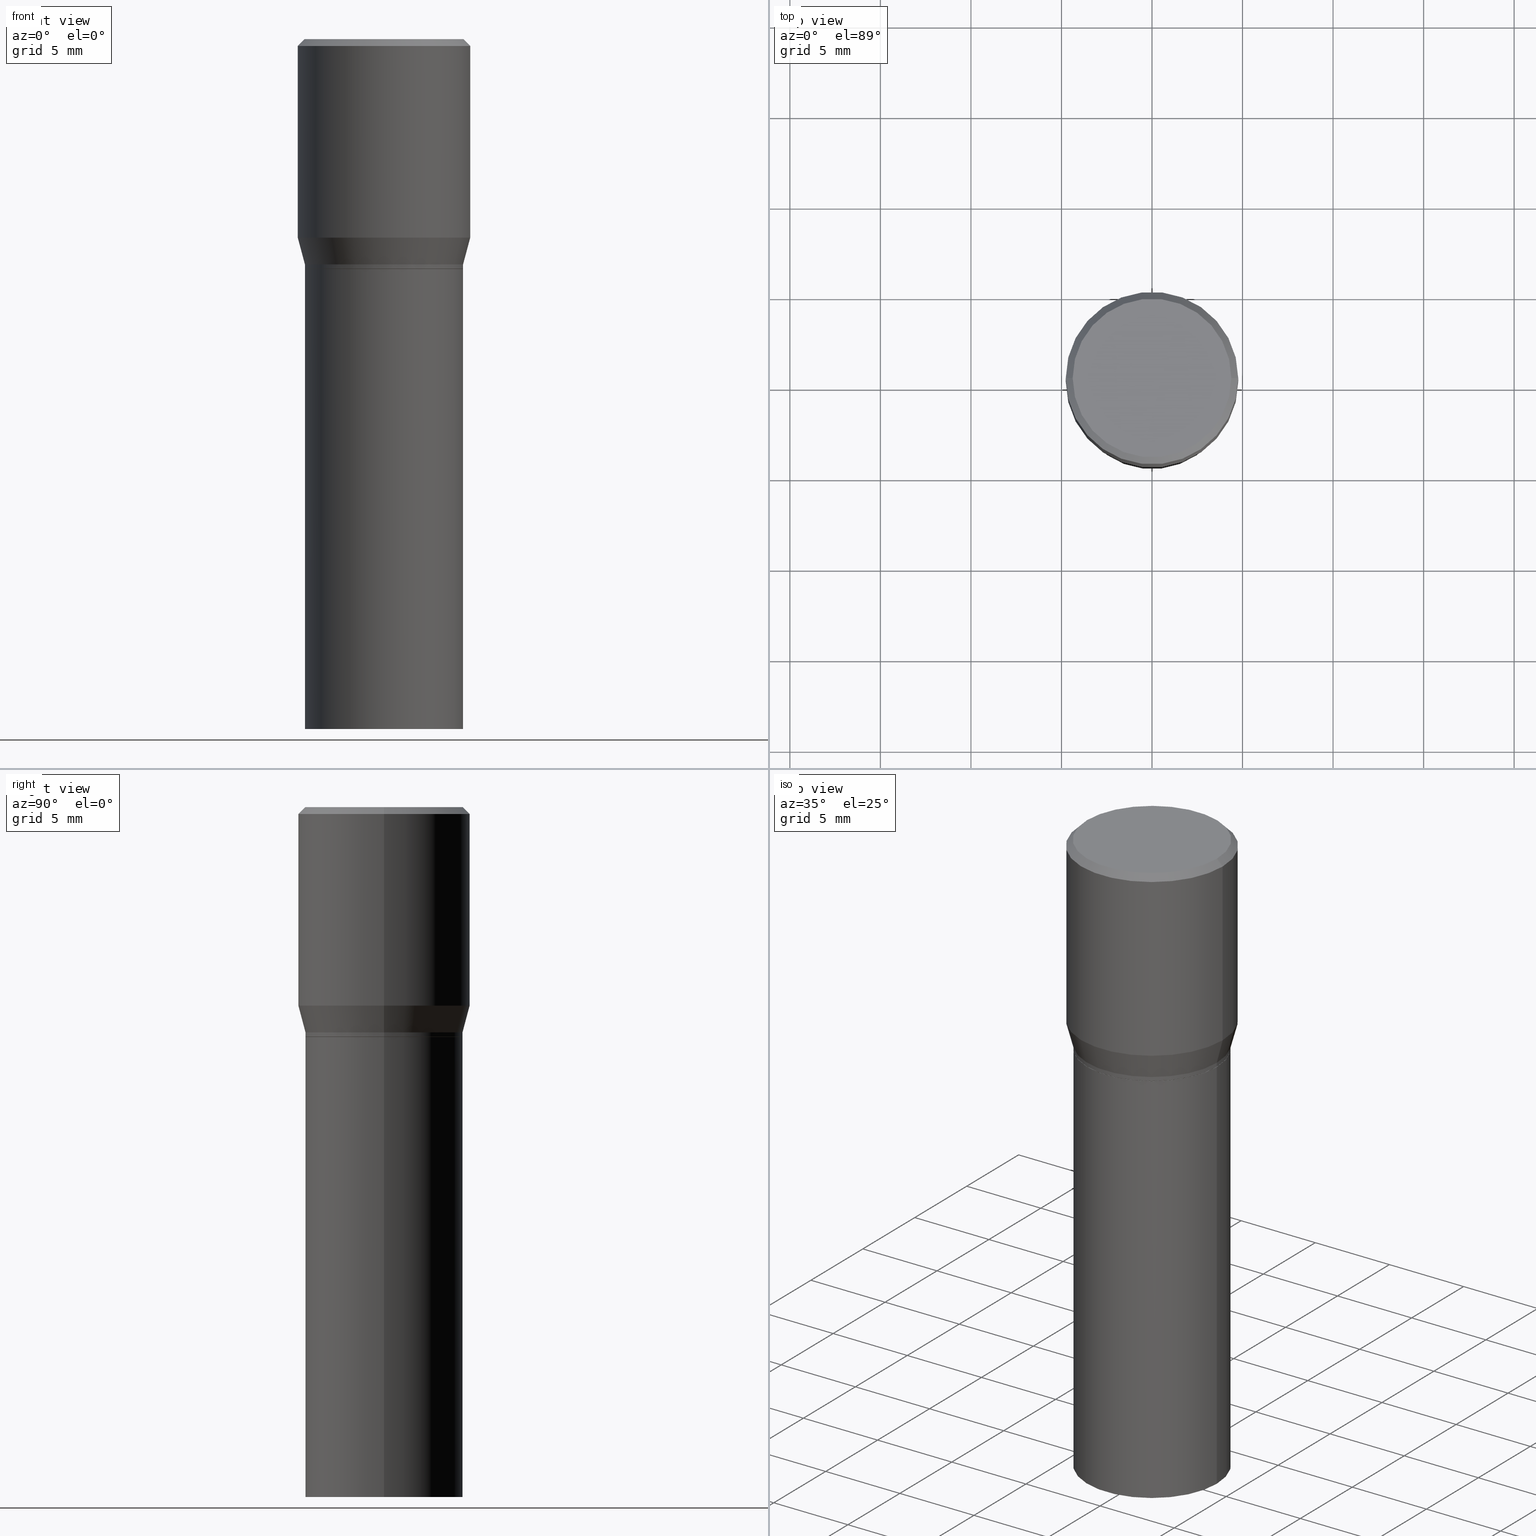
[diagram: canonical four-view strip — front | top / right | iso, engineering-drawing reading convention]
A machine part, canonical four-view strip (front | top / right | iso — engineering-drawing reading convention). The complete STEP part file that produces these views, byte-faithful:
ISO-10303-21;
HEADER;
FILE_DESCRIPTION (( 'STEP AP203' ),
    '1' );
FILE_NAME ('30832.STEP',
    '2024-03-13T16:25:50',
    ( '' ),
    ( '' ),
    'SwSTEP 2.0',
    'SolidWorks 2023',
    '' );
FILE_SCHEMA (( 'CONFIG_CONTROL_DESIGN' ));
ENDSEC;

DATA;
#1 = EDGE_CURVE ( 'NONE', #446, #304, #262, .T. ) ;
#2 = EDGE_LOOP ( 'NONE', ( #32, #310 ) ) ;
#3 = CALENDAR_DATE ( 2024, 13, 3 ) ;
#4 = ORIENTED_EDGE ( 'NONE', *, *, #306, .T. ) ;
#5 = CIRCLE ( 'NONE', #66, 0.1718999999999999695 ) ;
#6 = CALENDAR_DATE ( 2024, 13, 3 ) ;
#7 = CARTESIAN_POINT ( 'NONE',  ( 1.222734403092568719E-29, -1.745740669421573186E-15, -0.5000000000000001110 ) ) ;
#8 = DESIGN_CONTEXT ( 'detailed design', #295, 'design' ) ;
#9 = CARTESIAN_POINT ( 'NONE',  ( 0.1875000000000000278, -1.338715594664809642E-15, -0.01499999999999999944 ) ) ;
#10 = APPROVAL_ROLE ( '' ) ;
#11 = DIRECTION ( 'NONE',  ( -0.7071067811865483499, 2.468850131082265738E-15, -0.7071067811865466846 ) ) ;
#12 = AXIS2_PLACEMENT_3D ( 'NONE', #449, #237, #167 ) ;
#13 = ORIENTED_EDGE ( 'NONE', *, *, #373, .F. ) ;
#14 = DIRECTION ( 'NONE',  ( -2.445468806185136597E-29, 3.491481338843145583E-15, 1.000000000000000000 ) ) ;
#15 = ADVANCED_FACE ( 'NONE', ( #415 ), #236, .T. ) ;
#16 = CC_DESIGN_PERSON_AND_ORGANIZATION_ASSIGNMENT ( #287, #85, ( #274 ) ) ;
#17 = DIRECTION ( 'NONE',  ( 1.000000000000000000, -6.982962677686266711E-15, 0.000000000000000000 ) ) ;
#18 = LINE ( 'NONE', #172, #40 ) ;
#19 = AXIS2_PLACEMENT_3D ( 'NONE', #76, #78, #320 ) ;
#20 = ORIENTED_EDGE ( 'NONE', *, *, #1, .T. ) ;
#21 = CARTESIAN_POINT ( 'NONE',  ( 3.668203209277704895E-29, -5.237222008264718177E-15, -1.500000000000000222 ) ) ;
#22 = DIRECTION ( 'NONE',  ( 1.000000000000000000, -6.982962677686265922E-15, 0.000000000000000000 ) ) ;
#23 = FACE_OUTER_BOUND ( 'NONE', #79, .T. ) ;
#24 = FACE_OUTER_BOUND ( 'NONE', #347, .T. ) ;
#25 = ADVANCED_FACE ( 'NONE', ( #178 ), #455, .F. ) ;
#26 = ADVANCED_FACE ( 'NONE', ( #457 ), #294, .T. ) ;
#27 = CARTESIAN_POINT ( 'NONE',  ( -0.1718999999999999695, -3.323435510203601689E-16, -0.4900000000000001021 ) ) ;
#28 = CARTESIAN_POINT ( 'NONE',  ( 1.055904539235796751E-29, -1.507551838329378850E-15, -0.4317800074019257361 ) ) ;
#29 = COORDINATED_UNIVERSAL_TIME_OFFSET ( 5, 0, .BEHIND. ) ;
#30 = CLOSED_SHELL ( 'NONE', ( #286, #256, #15, #48 ) ) ;
#31 = APPLICATION_PROTOCOL_DEFINITION ( 'international standard', 'config_control_design', 1994, #325 ) ;
#32 = ORIENTED_EDGE ( 'NONE', *, *, #164, .F. ) ;
#33 = PERSON_AND_ORGANIZATION_ROLE ( 'creator' ) ;
#34 = ORIENTED_EDGE ( 'NONE', *, *, #153, .F. ) ;
#35 = VERTEX_POINT ( 'NONE', #68 ) ;
#36 = APPROVAL_STATUS ( 'not_yet_approved' ) ;
#37 = ORIENTED_EDGE ( 'NONE', *, *, #170, .T. ) ;
#38 = ORIENTED_EDGE ( 'NONE', *, *, #60, .T. ) ;
#39 = AXIS2_PLACEMENT_3D ( 'NONE', #139, #382, #207 ) ;
#40 = VECTOR ( 'NONE', #374, 39.37007874015748854 ) ;
#41 = UNCERTAINTY_MEASURE_WITH_UNIT (LENGTH_MEASURE( 1.000000000000000082E-05 ), #183, 'distance_accuracy_value', 'NONE');
#42 = LINE ( 'NONE', #333, #273 ) ;
#43 = ORIENTED_EDGE ( 'NONE', *, *, #131, .T. ) ;
#44 = DATE_AND_TIME ( #187, #390 ) ;
#45 = LINE ( 'NONE', #191, #336 ) ;
#46 = PERSON_AND_ORGANIZATION_ROLE ( 'design_supplier' ) ;
#47 = FACE_OUTER_BOUND ( 'NONE', #352, .T. ) ;
#48 = ADVANCED_FACE ( 'NONE', ( #422 ), #107, .F. ) ;
#49 = CYLINDRICAL_SURFACE ( 'NONE', #418, 0.1718999999999999695 ) ;
#50 = CONICAL_SURFACE ( 'NONE', #363, 0.1718999999999999695, 0.2617993877991502960 ) ;
#51 = APPROVAL_PERSON_ORGANIZATION ( #389, #241, #385 ) ;
#52 = ORIENTED_EDGE ( 'NONE', *, *, #154, .F. ) ;
#53 = ORIENTED_EDGE ( 'NONE', *, *, #1, .F. ) ;
#54 = FACE_OUTER_BOUND ( 'NONE', #254, .T. ) ;
#55 = CARTESIAN_POINT ( 'NONE',  ( 0.1718999999999999695, -1.200371284294269044E-15, 8.382147877593213079E-30 ) ) ;
#56 = CARTESIAN_POINT ( 'NONE',  ( 0.1713999999999999690, -2.942620472376999223E-15, -0.5000000000000001110 ) ) ;
#57 = PRODUCT ( '30832', '30832', '', ( #216 ) ) ;
#58 = CIRCLE ( 'NONE', #311, 0.1725000000000000144 ) ;
#59 = AXIS2_PLACEMENT_3D ( 'NONE', #176, #303, #454 ) ;
#60 = EDGE_CURVE ( 'NONE', #181, #317, #436, .T. ) ;
#61 = DIRECTION ( 'NONE',  ( 1.000000000000000000, -6.982962677686265922E-15, 0.000000000000000000 ) ) ;
#62 = EDGE_LOOP ( 'NONE', ( #308, #4, #326, #148 ) ) ;
#63 = DIRECTION ( 'NONE',  ( -2.445468806185136877E-29, 3.491481338843145188E-15, 1.000000000000000000 ) ) ;
#64 = DIRECTION ( 'NONE',  ( -2.445468806185136597E-29, 3.491481338843145583E-15, 1.000000000000000000 ) ) ;
#65 = APPROVAL ( #391, 'UNSPECIFIED' ) ;
#66 = AXIS2_PLACEMENT_3D ( 'NONE', #7, #362, #17 ) ;
#67 = PERSON_AND_ORGANIZATION_ROLE ( 'design_owner' ) ;
#68 = CARTESIAN_POINT ( 'NONE',  ( 0.1718999999999999695, -6.437593292558987418E-15, -1.500000000000000222 ) ) ;
#69 = CALENDAR_DATE ( 2024, 13, 3 ) ;
#70 = CARTESIAN_POINT ( 'NONE',  ( 0.000000000000000000, 0.000000000000000000, 0.000000000000000000 ) ) ;
#71 = AXIS2_PLACEMENT_3D ( 'NONE', #209, #238, #179 ) ;
#72 = ORIENTED_EDGE ( 'NONE', *, *, #373, .T. ) ;
#73 = COORDINATED_UNIVERSAL_TIME_OFFSET ( 5, 0, .BEHIND. ) ;
#74 = EDGE_CURVE ( 'NONE', #464, #316, #240, .T. ) ;
#75 = DIRECTION ( 'NONE',  ( -1.000000000000000000, 6.982962677686265922E-15, -4.876176775795935793E-29 ) ) ;
#76 = CARTESIAN_POINT ( 'NONE',  ( 1.198279715030717173E-29, -1.710825856033141537E-15, -0.4900000000000001021 ) ) ;
#77 = EDGE_CURVE ( 'NONE', #35, #424, #383, .T. ) ;
#78 = DIRECTION ( 'NONE',  ( -2.445468806185136597E-29, 3.491481338843145583E-15, 1.000000000000000000 ) ) ;
#79 = EDGE_LOOP ( 'NONE', ( #427, #117, #188, #38 ) ) ;
#80 = PERSON_AND_ORGANIZATION ( #151, #452 ) ;
#81 = ORIENTED_EDGE ( 'NONE', *, *, #170, .F. ) ;
#82 = DIRECTION ( 'NONE',  ( -2.445468806185136597E-29, 3.491481338843145583E-15, 1.000000000000000000 ) ) ;
#83 = EDGE_CURVE ( 'NONE', #147, #181, #197, .T. ) ;
#84 = ORIENTED_EDGE ( 'NONE', *, *, #305, .F. ) ;
#85 = PERSON_AND_ORGANIZATION_ROLE ( 'creator' ) ;
#86 = AXIS2_PLACEMENT_3D ( 'NONE', #284, #258, #118 ) ;
#87 = AXIS2_PLACEMENT_3D ( 'NONE', #444, #128, #61 ) ;
#88 = FACE_OUTER_BOUND ( 'NONE', #327, .T. ) ;
#89 = CARTESIAN_POINT ( 'NONE',  ( 3.576687321579069994E-29, -5.368277968210015545E-15, -1.500000000000000222 ) ) ;
#90 = CARTESIAN_POINT ( 'NONE',  ( 1.222734403092568719E-29, -1.745740669421573186E-15, -0.5000000000000001110 ) ) ;
#91 = MANIFOLD_SOLID_BREP ( 'Body-Move/Copy2[2]', #266 ) ;
#92 = DATE_AND_TIME ( #291, #463 ) ;
#93 = CARTESIAN_POINT ( 'NONE',  ( -0.1725000000000000144, 1.230747171942204192E-15, -2.636744989016075847E-17 ) ) ;
#94 = VERTEX_POINT ( 'NONE', #251 ) ;
#95 = AXIS2_PLACEMENT_3D ( 'NONE', #231, #269, #22 ) ;
#96 = CONICAL_SURFACE ( 'NONE', #71, 0.1875000000000000278, 0.7853981633974495002 ) ;
#97 = CARTESIAN_POINT ( 'NONE',  ( 0.000000000000000000, 0.000000000000000000, 0.000000000000000000 ) ) ;
#98 = DIRECTION ( 'NONE',  ( 1.000000000000000000, -6.982962677686265922E-15, 4.876176775795935793E-29 ) ) ;
#99 = DIRECTION ( 'NONE',  ( -2.445468806185136597E-29, 3.491481338843145583E-15, 1.000000000000000000 ) ) ;
#100 = CIRCLE ( 'NONE', #135, 0.1718999999999999695 ) ;
#101 = CIRCLE ( 'NONE', #129, 0.1725000000000000144 ) ;
#102 = ORIENTED_EDGE ( 'NONE', *, *, #305, .T. ) ;
#103 = CARTESIAN_POINT ( 'NONE',  ( 0.1875000000000000278, -1.309305502066175008E-15, 9.142831454617381013E-30 ) ) ;
#104 = EDGE_CURVE ( 'NONE', #378, #249, #5, .T. ) ;
#105 = DIRECTION ( 'NONE',  ( -0.2588190451025216277, 5.211531920934551831E-15, 0.9659258262890679791 ) ) ;
#106 = AXIS2_PLACEMENT_3D ( 'NONE', #324, #165, #368 ) ;
#107 = PLANE ( 'NONE',  #318 ) ;
#108 = ORIENTED_EDGE ( 'NONE', *, *, #300, .T. ) ;
#109 = ORIENTED_EDGE ( 'NONE', *, *, #83, .F. ) ;
#110 = ORIENTED_EDGE ( 'NONE', *, *, #451, .T. ) ;
#111 = APPROVAL_ROLE ( '' ) ;
#112 = ORIENTED_EDGE ( 'NONE', *, *, #459, .T. ) ;
#113 = EDGE_CURVE ( 'NONE', #453, #317, #370, .T. ) ;
#114 = CARTESIAN_POINT ( 'NONE',  ( 1.198279715030717173E-29, -1.710825856033141537E-15, -0.4900000000000001021 ) ) ;
#115 = EDGE_CURVE ( 'NONE', #316, #304, #222, .T. ) ;
#116 = CARTESIAN_POINT ( 'NONE',  ( 3.668203209277705088E-31, -5.237222008264718399E-17, -0.01499999999999999944 ) ) ;
#117 = ORIENTED_EDGE ( 'NONE', *, *, #434, .F. ) ;
#118 = DIRECTION ( 'NONE',  ( 1.000000000000000000, -6.982962677686268288E-15, 0.000000000000000000 ) ) ;
#119 = ORIENTED_EDGE ( 'NONE', *, *, #77, .F. ) ;
#120 = DIRECTION ( 'NONE',  ( -2.445468806185136597E-29, 3.491481338843145583E-15, 1.000000000000000000 ) ) ;
#121 = CIRCLE ( 'NONE', #247, 0.1718999999999999695 ) ;
#122 = APPROVAL_PERSON_ORGANIZATION ( #250, #322, #10 ) ;
#123 = DIRECTION ( 'NONE',  ( 1.000000000000000000, -6.982962677686266711E-15, 4.876176775795936353E-29 ) ) ;
#124 = APPROVAL_DATE_TIME ( #92, #322 ) ;
#125 = DIRECTION ( 'NONE',  ( -2.445468806185136597E-29, 3.491481338843145583E-15, 1.000000000000000000 ) ) ;
#126 = FACE_OUTER_BOUND ( 'NONE', #349, .T. ) ;
#127 = ORIENTED_EDGE ( 'NONE', *, *, #459, .F. ) ;
#128 = DIRECTION ( 'NONE',  ( -2.445468806185136597E-29, 3.491481338843145583E-15, 1.000000000000000000 ) ) ;
#129 = AXIS2_PLACEMENT_3D ( 'NONE', #412, #64, #202 ) ;
#130 = CARTESIAN_POINT ( 'NONE',  ( -0.1718999999999999695, -4.894028932615295339E-16, -0.4900000000000001021 ) ) ;
#131 = EDGE_CURVE ( 'NONE', #424, #249, #42, .T. ) ;
#132 = ORIENTED_EDGE ( 'NONE', *, *, #233, .T. ) ;
#133 = DIRECTION ( 'NONE',  ( 1.000000000000000000, -6.982962677686265922E-15, 4.876176775795935793E-29 ) ) ;
#134 = CARTESIAN_POINT ( 'NONE',  ( 0.000000000000000000, 0.000000000000000000, 0.000000000000000000 ) ) ;
#135 = AXIS2_PLACEMENT_3D ( 'NONE', #403, #440, #190 ) ;
#136 =( GEOMETRIC_REPRESENTATION_CONTEXT ( 3 ) GLOBAL_UNCERTAINTY_ASSIGNED_CONTEXT ( ( #41 ) ) GLOBAL_UNIT_ASSIGNED_CONTEXT ( ( #183, #140, #465 ) ) REPRESENTATION_CONTEXT ( 'NONE', 'WORKASPACE' ) );
#137 = DIRECTION ( 'NONE',  ( -2.445468806185136597E-29, 3.491481338843145583E-15, 1.000000000000000000 ) ) ;
#138 = CARTESIAN_POINT ( 'NONE',  ( -0.1875000000000000278, -1.752842087791908777E-16, -0.4317800074019257361 ) ) ;
#139 = CARTESIAN_POINT ( 'NONE',  ( 1.204561061900881047E-15, 0.1725000000000000144, -6.154642558955188135E-16 ) ) ;
#140 =( NAMED_UNIT ( * ) PLANE_ANGLE_UNIT ( ) SI_UNIT ( $, .RADIAN. ) );
#141 = VECTOR ( 'NONE', #105, 39.37007874015748143 ) ;
#142 = AXIS2_PLACEMENT_3D ( 'NONE', #384, #243, #180 ) ;
#143 = CARTESIAN_POINT ( 'NONE',  ( 1.222734403092568719E-29, -1.745740669421573186E-15, -0.5000000000000001110 ) ) ;
#144 = ORIENTED_EDGE ( 'NONE', *, *, #359, .T. ) ;
#145 = DIRECTION ( 'NONE',  ( -2.445468806185136597E-29, 3.491481338843145583E-15, 1.000000000000000000 ) ) ;
#146 = ORIENTED_EDGE ( 'NONE', *, *, #392, .F. ) ;
#147 = VERTEX_POINT ( 'NONE', #93 ) ;
#148 = ORIENTED_EDGE ( 'NONE', *, *, #74, .F. ) ;
#149 = ORIENTED_EDGE ( 'NONE', *, *, #359, .F. ) ;
#150 = DATE_AND_TIME ( #3, #296 ) ;
#151 = PERSON ( 'UNSPECIFIED', 'UNSPECIFIED', 'UNSPECIFIED', ('UNSPECIFIED'), ('UNSPECIFIED'), ('UNSPECIFIED') ) ;
#152 = EDGE_LOOP ( 'NONE', ( #313, #395, #276, #53 ) ) ;
#153 = EDGE_CURVE ( 'NONE', #316, #464, #100, .T. ) ;
#154 = EDGE_CURVE ( 'NONE', #94, #275, #396, .T. ) ;
#155 = EDGE_LOOP ( 'NONE', ( #144, #132, #358, #146 ) ) ;
#156 = SHAPE_DEFINITION_REPRESENTATION ( #409, #299 ) ;
#157 = DIRECTION ( 'NONE',  ( 1.000000000000000000, -6.982962677686266711E-15, 0.000000000000000000 ) ) ;
#158 = PERSON_AND_ORGANIZATION ( #151, #452 ) ;
#159 = FACE_OUTER_BOUND ( 'NONE', #62, .T. ) ;
#160 = DATE_AND_TIME ( #6, #346 ) ;
#161 = VECTOR ( 'NONE', #163, 39.37007874015748143 ) ;
#162 = AXIS2_PLACEMENT_3D ( 'NONE', #97, #377, #133 ) ;
#163 = DIRECTION ( 'NONE',  ( 0.2588190451025216277, 1.565188264969619995E-15, 0.9659258262890679791 ) ) ;
#164 = EDGE_CURVE ( 'NONE', #388, #94, #445, .T. ) ;
#165 = DIRECTION ( 'NONE',  ( -2.445468806185136597E-29, 3.491481338843145583E-15, 1.000000000000000000 ) ) ;
#166 = ORIENTED_EDGE ( 'NONE', *, *, #77, .T. ) ;
#167 = DIRECTION ( 'NONE',  ( 1.000000000000000000, -6.982962677686265922E-15, 0.000000000000000000 ) ) ;
#168 = ORIENTED_EDGE ( 'NONE', *, *, #306, .F. ) ;
#169 = EDGE_CURVE ( 'NONE', #249, #378, #224, .T. ) ;
#170 = EDGE_CURVE ( 'NONE', #453, #147, #58, .T. ) ;
#171 = VECTOR ( 'NONE', #267, 39.37007874015748143 ) ;
#172 = CARTESIAN_POINT ( 'NONE',  ( 0.1713999999999999690, -2.942620472376999223E-15, -0.5000000000000001110 ) ) ;
#173 = CONICAL_SURFACE ( 'NONE', #337, 0.1718999999999999695, 0.2617993877991502960 ) ;
#174 = DIRECTION ( 'NONE',  ( -2.445468806185136597E-29, 3.491481338843145583E-15, 1.000000000000000000 ) ) ;
#175 = CARTESIAN_POINT ( 'NONE',  ( -0.1718999999999999695, -5.225719659805397780E-16, -0.4995000000000001661 ) ) ;
#176 = CARTESIAN_POINT ( 'NONE',  ( 3.668203209277705088E-31, -5.237222008264718399E-17, -0.01499999999999999944 ) ) ;
#177 = CONICAL_SURFACE ( 'NONE', #59, 0.1875000000000000278, 0.7853981633974495002 ) ;
#178 = FACE_OUTER_BOUND ( 'NONE', #277, .T. ) ;
#179 = DIRECTION ( 'NONE',  ( -1.000000000000000000, 6.982962677686265922E-15, 0.000000000000000000 ) ) ;
#180 = DIRECTION ( 'NONE',  ( 1.000000000000000000, -6.982962677686265922E-15, 4.876176775795935793E-29 ) ) ;
#181 = VERTEX_POINT ( 'NONE', #439 ) ;
#182 = VECTOR ( 'NONE', #63, 39.37007874015748143 ) ;
#183 =( CONVERSION_BASED_UNIT ( 'INCH', #417 ) LENGTH_UNIT ( ) NAMED_UNIT ( #213 ) );
#184 = ORIENTED_EDGE ( 'NONE', *, *, #113, .T. ) ;
#185 = LINE ( 'NONE', #425, #420 ) ;
#186 = ADVANCED_FACE ( 'NONE', ( #54 ), #50, .T. ) ;
#187 = CALENDAR_DATE ( 2024, 13, 3 ) ;
#188 = ORIENTED_EDGE ( 'NONE', *, *, #83, .T. ) ;
#189 = PERSON_AND_ORGANIZATION_ROLE ( 'classification_officer' ) ;
#190 = DIRECTION ( 'NONE',  ( 1.000000000000000000, -6.982962677686266711E-15, 0.000000000000000000 ) ) ;
#191 = CARTESIAN_POINT ( 'NONE',  ( -0.1875000000000000278, 1.332267629550188046E-15, -9.223003294227947991E-30 ) ) ;
#192 = DIRECTION ( 'NONE',  ( -2.438088387897960049E-29, 3.491481338843145188E-15, 1.000000000000000000 ) ) ;
#193 = AXIS2_PLACEMENT_3D ( 'NONE', #407, #99, #298 ) ;
#194 = CC_DESIGN_SECURITY_CLASSIFICATION ( #212, ( #274 ) ) ;
#195 = CARTESIAN_POINT ( 'NONE',  ( 0.000000000000000000, 0.000000000000000000, 0.000000000000000000 ) ) ;
#196 = EDGE_LOOP ( 'NONE', ( #442, #356 ) ) ;
#197 = LINE ( 'NONE', #334, #230 ) ;
#198 = CC_DESIGN_PERSON_AND_ORGANIZATION_ASSIGNMENT ( #357, #33, ( #386 ) ) ;
#199 = CARTESIAN_POINT ( 'NONE',  ( -0.1718999999999999695, 1.221422962771612003E-15, -8.455649420148183180E-30 ) ) ;
#200 = AXIS2_PLACEMENT_3D ( 'NONE', #143, #271, #419 ) ;
#201 = CARTESIAN_POINT ( 'NONE',  ( -0.1718999999999999695, -2.270058376071533777E-15, -1.500000000000000222 ) ) ;
#202 = DIRECTION ( 'NONE',  ( 1.000000000000000000, -6.982962677686266711E-15, 4.876912640186324808E-29 ) ) ;
#203 = EDGE_LOOP ( 'NONE', ( #166, #43, #214, #127 ) ) ;
#204 = DIRECTION ( 'NONE',  ( 1.000000000000000000, -6.982962677686266711E-15, 0.000000000000000000 ) ) ;
#205 = FACE_OUTER_BOUND ( 'NONE', #203, .T. ) ;
#206 = CC_DESIGN_APPROVAL ( #65, ( #274 ) ) ;
#207 = DIRECTION ( 'NONE',  ( -1.000000000000000000, 6.982962677686265922E-15, -4.876176775795935793E-29 ) ) ;
#208 = ADVANCED_FACE ( 'NONE', ( #47 ), #211, .T. ) ;
#209 = CARTESIAN_POINT ( 'NONE',  ( 3.668203209277705088E-31, -5.237222008264718399E-17, -0.01499999999999999944 ) ) ;
#210 = EDGE_LOOP ( 'NONE', ( #361, #245, #220, #13 ) ) ;
#211 = CONICAL_SURFACE ( 'NONE', #302, 0.1713999999999999690, 0.7853981633974824739 ) ;
#212 = SECURITY_CLASSIFICATION ( '', '', #393 ) ;
#213 = DIMENSIONAL_EXPONENTS ( 1.000000000000000000, 0.000000000000000000, 0.000000000000000000, 0.000000000000000000, 0.000000000000000000, 0.000000000000000000, 0.000000000000000000 ) ;
#214 = ORIENTED_EDGE ( 'NONE', *, *, #104, .F. ) ;
#215 = DATE_AND_TIME ( #69, #319 ) ;
#216 = MECHANICAL_CONTEXT ( 'NONE', #325, 'mechanical' ) ;
#217 = EDGE_LOOP ( 'NONE', ( #281, #20, #365, #401 ) ) ;
#218 = CARTESIAN_POINT ( 'NONE',  ( 6.448077620501702025E-46, -9.206145924434830208E-32, -2.636744989015224123E-17 ) ) ;
#219 = AXIS2_PLACEMENT_3D ( 'NONE', #89, #192, #261 ) ;
#220 = ORIENTED_EDGE ( 'NONE', *, *, #451, .F. ) ;
#221 = CARTESIAN_POINT ( 'NONE',  ( 0.000000000000000000, 0.000000000000000000, 0.000000000000000000 ) ) ;
#222 = LINE ( 'NONE', #253, #161 ) ;
#223 = CARTESIAN_POINT ( 'NONE',  ( 1.222734403092568719E-29, -1.745740669421573186E-15, -0.5000000000000001110 ) ) ;
#224 = CIRCLE ( 'NONE', #461, 0.1718999999999999695 ) ;
#225 = ADVANCED_FACE ( 'NONE', ( #88 ), #433, .T. ) ;
#226 = CARTESIAN_POINT ( 'NONE',  ( -0.1718999999999999695, -2.270058376071533777E-15, -0.5000000000000001110 ) ) ;
#227 = CC_DESIGN_PERSON_AND_ORGANIZATION_ASSIGNMENT ( #432, #46, ( #274 ) ) ;
#228 = CYLINDRICAL_SURFACE ( 'NONE', #193, 0.1718999999999999695 ) ;
#229 = LINE ( 'NONE', #199, #364 ) ;
#230 = VECTOR ( 'NONE', #11, 39.37007874015748143 ) ;
#231 = CARTESIAN_POINT ( 'NONE',  ( 1.221511668689476057E-29, -1.743994928752151682E-15, -0.4995000000000001661 ) ) ;
#232 = ORIENTED_EDGE ( 'NONE', *, *, #371, .T. ) ;
#233 = EDGE_CURVE ( 'NONE', #446, #181, #45, .T. ) ;
#234 = DIRECTION ( 'NONE',  ( -2.445468806185136597E-29, 3.491481338843145583E-15, 1.000000000000000000 ) ) ;
#235 = MANIFOLD_SOLID_BREP ( 'Body-Move/Copy2[1]', #30 ) ;
#236 = CYLINDRICAL_SURFACE ( 'NONE', #397, 0.1718999999999999695 ) ;
#237 = DIRECTION ( 'NONE',  ( -2.445468806185136597E-29, 3.491481338843145583E-15, 1.000000000000000000 ) ) ;
#238 = DIRECTION ( 'NONE',  ( 2.445468806185136597E-29, -3.491481338843145583E-15, -1.000000000000000000 ) ) ;
#239 = AXIS2_PLACEMENT_3D ( 'NONE', #221, #366, #123 ) ;
#240 = CIRCLE ( 'NONE', #19, 0.1718999999999999695 ) ;
#241 = APPROVAL ( #421, 'UNSPECIFIED' ) ;
#242 = DIRECTION ( 'NONE',  ( 1.000000000000000000, -6.982962677686266711E-15, 4.876176775795936353E-29 ) ) ;
#243 = DIRECTION ( 'NONE',  ( -2.438088387897960049E-29, 3.491481338843145188E-15, 1.000000000000000000 ) ) ;
#244 = ORIENTED_EDGE ( 'NONE', *, *, #169, .F. ) ;
#245 = ORIENTED_EDGE ( 'NONE', *, *, #154, .T. ) ;
#246 = APPLICATION_PROTOCOL_DEFINITION ( 'international standard', 'config_control_design', 1994, #295 ) ;
#247 = AXIS2_PLACEMENT_3D ( 'NONE', #21, #174, #416 ) ;
#248 = COORDINATED_UNIVERSAL_TIME_OFFSET ( 5, 0, .BEHIND. ) ;
#249 = VERTEX_POINT ( 'NONE', #226 ) ;
#250 = PERSON_AND_ORGANIZATION ( #151, #452 ) ;
#251 = CARTESIAN_POINT ( 'NONE',  ( -0.1713999999999999690, -5.252211931546505847E-16, -0.5000000000000001110 ) ) ;
#252 = VERTEX_POINT ( 'NONE', #369 ) ;
#253 = CARTESIAN_POINT ( 'NONE',  ( 0.1718999999999999695, -2.911197140327410581E-15, -0.4900000000000001021 ) ) ;
#254 = EDGE_LOOP ( 'NONE', ( #441, #108, #149, #367 ) ) ;
#255 = ADVANCED_FACE ( 'NONE', ( #159 ), #49, .T. ) ;
#256 = ADVANCED_FACE ( 'NONE', ( #126 ), #435, .F. ) ;
#257 = CC_DESIGN_APPROVAL ( #322, ( #212 ) ) ;
#258 = DIRECTION ( 'NONE',  ( -2.445468806185136597E-29, 3.491481338843145583E-15, 1.000000000000000000 ) ) ;
#259 = DIRECTION ( 'NONE',  ( 1.000000000000000000, -6.982962677686266711E-15, 0.000000000000000000 ) ) ;
#260 = EDGE_CURVE ( 'NONE', #252, #316, #379, .T. ) ;
#261 = DIRECTION ( 'NONE',  ( 1.000000000000000000, -6.982962677686265922E-15, 4.876176775795935793E-29 ) ) ;
#262 = CIRCLE ( 'NONE', #429, 0.1875000000000000278 ) ;
#263 = DIRECTION ( 'NONE',  ( 1.000000000000000000, -6.982962677686266711E-15, 0.000000000000000000 ) ) ;
#264 = CARTESIAN_POINT ( 'NONE',  ( 0.1875000000000000278, -1.361677722148822285E-15, -0.01499999999999999944 ) ) ;
#265 = FACE_OUTER_BOUND ( 'NONE', #217, .T. ) ;
#266 = CLOSED_SHELL ( 'NONE', ( #225, #26, #450, #315, #186, #437, #338, #443, #25, #460, #208, #255 ) ) ;
#267 = DIRECTION ( 'NONE',  ( -2.445468806185136877E-29, 3.491481338843145188E-15, 1.000000000000000000 ) ) ;
#268 = AXIS2_PLACEMENT_3D ( 'NONE', #134, #293, #98 ) ;
#269 = DIRECTION ( 'NONE',  ( -2.445468806185136597E-29, 3.491481338843145583E-15, 1.000000000000000000 ) ) ;
#270 = CC_DESIGN_DATE_AND_TIME_ASSIGNMENT ( #150, #282, ( #386 ) ) ;
#271 = DIRECTION ( 'NONE',  ( -2.445468806185136597E-29, 3.491481338843145583E-15, 1.000000000000000000 ) ) ;
#272 = CARTESIAN_POINT ( 'NONE',  ( 1.200371284294281074E-15, 0.1718999999999982486, -0.5000000000000007772 ) ) ;
#273 = VECTOR ( 'NONE', #399, 39.37007874015748143 ) ;
#274 = PRODUCT_DEFINITION_FORMATION_WITH_SPECIFIED_SOURCE ( 'ANY', '', #57, .NOT_KNOWN. ) ;
#275 = VERTEX_POINT ( 'NONE', #175 ) ;
#276 = ORIENTED_EDGE ( 'NONE', *, *, #115, .T. ) ;
#277 = EDGE_LOOP ( 'NONE', ( #279, #37 ) ) ;
#278 = DIRECTION ( 'NONE',  ( -2.445468806185136877E-29, 3.491481338843145188E-15, 1.000000000000000000 ) ) ;
#279 = ORIENTED_EDGE ( 'NONE', *, *, #434, .T. ) ;
#280 = DIRECTION ( 'NONE',  ( 1.000000000000000000, -6.982962677686265922E-15, 0.000000000000000000 ) ) ;
#281 = ORIENTED_EDGE ( 'NONE', *, *, #233, .F. ) ;
#282 = DATE_TIME_ROLE ( 'creation_date' ) ;
#283 = CC_DESIGN_APPROVAL ( #241, ( #386 ) ) ;
#284 = CARTESIAN_POINT ( 'NONE',  ( 3.668203209277704895E-29, -5.237222008264718177E-15, -1.500000000000000222 ) ) ;
#285 = DIRECTION ( 'NONE',  ( -2.445468806185136597E-29, 3.491481338843145583E-15, 1.000000000000000000 ) ) ;
#286 = ADVANCED_FACE ( 'NONE', ( #205 ), #228, .T. ) ;
#287 = PERSON_AND_ORGANIZATION ( #151, #452 ) ;
#288 = DIRECTION ( 'NONE',  ( 1.000000000000000000, -6.982962677686266711E-15, 4.876176775795936353E-29 ) ) ;
#289 = DATE_TIME_ROLE ( 'classification_date' ) ;
#290 = DIRECTION ( 'NONE',  ( -0.7071067811865715536, 7.493145998870439357E-15, 0.7071067811865232589 ) ) ;
#291 = CALENDAR_DATE ( 2024, 13, 3 ) ;
#292 = CARTESIAN_POINT ( 'NONE',  ( -0.1713999999999999690, -5.278704203287616871E-16, -0.5000000000000001110 ) ) ;
#293 = DIRECTION ( 'NONE',  ( -2.445468806185136597E-29, 3.491481338843145583E-15, 1.000000000000000000 ) ) ;
#294 = CONICAL_SURFACE ( 'NONE', #200, 0.1713999999999999690, 0.7853981633974824739 ) ;
#295 = APPLICATION_CONTEXT ( 'configuration controlled 3d designs of mechanical parts and assemblies' ) ;
#296 = LOCAL_TIME ( 12, 25, 50.00000000000000000, #29 ) ;
#297 = LINE ( 'NONE', #103, #182 ) ;
#298 = DIRECTION ( 'NONE',  ( 1.000000000000000000, -6.982962677686266711E-15, 4.876176775795936353E-29 ) ) ;
#299 = ADVANCED_BREP_SHAPE_REPRESENTATION ( '30832', ( #235, #91, #332 ), #136 ) ;
#300 = EDGE_CURVE ( 'NONE', #464, #446, #414, .T. ) ;
#301 = CARTESIAN_POINT ( 'NONE',  ( 0.1718999999999999695, -2.946111953715842230E-15, -0.5000000000000001110 ) ) ;
#302 = AXIS2_PLACEMENT_3D ( 'NONE', #223, #82, #400 ) ;
#303 = DIRECTION ( 'NONE',  ( 2.445468806185136597E-29, -3.491481338843145583E-15, -1.000000000000000000 ) ) ;
#304 = VERTEX_POINT ( 'NONE', #448 ) ;
#305 = EDGE_CURVE ( 'NONE', #424, #35, #121, .T. ) ;
#306 = EDGE_CURVE ( 'NONE', #275, #252, #375, .T. ) ;
#307 = CARTESIAN_POINT ( 'NONE',  ( 0.1725000000000000144, -1.261075749640199308E-15, -2.636744989014362231E-17 ) ) ;
#308 = ORIENTED_EDGE ( 'NONE', *, *, #371, .F. ) ;
#309 = DIRECTION ( 'NONE',  ( 0.000000000000000000, 0.000000000000000000, 1.000000000000000000 ) ) ;
#310 = ORIENTED_EDGE ( 'NONE', *, *, #351, .F. ) ;
#311 = AXIS2_PLACEMENT_3D ( 'NONE', #218, #285, #330 ) ;
#312 = AXIS2_PLACEMENT_3D ( 'NONE', #314, #145, #280 ) ;
#313 = ORIENTED_EDGE ( 'NONE', *, *, #300, .F. ) ;
#314 = CARTESIAN_POINT ( 'NONE',  ( 1.221511668689476057E-29, -1.743994928752151682E-15, -0.4995000000000001661 ) ) ;
#315 = ADVANCED_FACE ( 'NONE', ( #345 ), #372, .T. ) ;
#316 = VERTEX_POINT ( 'NONE', #447 ) ;
#317 = VERTEX_POINT ( 'NONE', #264 ) ;
#318 = AXIS2_PLACEMENT_3D ( 'NONE', #272, #423, #75 ) ;
#319 = LOCAL_TIME ( 12, 25, 50.00000000000000000, #73 ) ;
#320 = DIRECTION ( 'NONE',  ( 1.000000000000000000, -6.982962677686266711E-15, 0.000000000000000000 ) ) ;
#321 = EDGE_CURVE ( 'NONE', #317, #181, #405, .T. ) ;
#322 = APPROVAL ( #36, 'UNSPECIFIED' ) ;
#323 = APPROVAL_DATE_TIME ( #44, #65 ) ;
#324 = CARTESIAN_POINT ( 'NONE',  ( 1.222734403092568719E-29, -1.745740669421573186E-15, -0.5000000000000001110 ) ) ;
#325 = APPLICATION_CONTEXT ( 'configuration controlled 3d designs of mechanical parts and assemblies' ) ;
#326 = ORIENTED_EDGE ( 'NONE', *, *, #260, .T. ) ;
#327 = EDGE_LOOP ( 'NONE', ( #110, #232, #34, #430 ) ) ;
#328 = DIRECTION ( 'NONE',  ( -2.445468806185136877E-29, 3.491481338843145188E-15, 1.000000000000000000 ) ) ;
#329 = DIRECTION ( 'NONE',  ( 1.000000000000000000, -6.982962677686265922E-15, 0.000000000000000000 ) ) ;
#330 = DIRECTION ( 'NONE',  ( 1.000000000000000000, -6.982962677686266711E-15, 4.876912640186324808E-29 ) ) ;
#331 = AXIS2_PLACEMENT_3D ( 'NONE', #116, #120, #329 ) ;
#332 = AXIS2_PLACEMENT_3D ( 'NONE', #70, #309, #466 ) ;
#333 = CARTESIAN_POINT ( 'NONE',  ( -0.1718999999999999695, 1.221422962771612003E-15, -8.455649420148183180E-30 ) ) ;
#334 = CARTESIAN_POINT ( 'NONE',  ( -0.1875000000000000278, 1.256933281983527732E-15, -0.01499999999999999944 ) ) ;
#335 = DIRECTION ( 'NONE',  ( -2.445468806185136877E-29, 3.491481338843145188E-15, 1.000000000000000000 ) ) ;
#336 = VECTOR ( 'NONE', #328, 39.37007874015748143 ) ;
#337 = AXIS2_PLACEMENT_3D ( 'NONE', #340, #234, #204 ) ;
#338 = ADVANCED_FACE ( 'NONE', ( #265 ), #410, .T. ) ;
#339 = CC_DESIGN_PERSON_AND_ORGANIZATION_ASSIGNMENT ( #158, #189, ( #212 ) ) ;
#340 = CARTESIAN_POINT ( 'NONE',  ( 1.198279715030717173E-29, -1.710825856033141537E-15, -0.4900000000000001021 ) ) ;
#341 = FACE_OUTER_BOUND ( 'NONE', #152, .T. ) ;
#342 = DIRECTION ( 'NONE',  ( -2.445468806185136597E-29, 3.491481338843145583E-15, 1.000000000000000000 ) ) ;
#343 = DIRECTION ( 'NONE',  ( -2.445468806185136597E-29, 3.491481338843145583E-15, 1.000000000000000000 ) ) ;
#344 = VECTOR ( 'NONE', #290, 39.37007874015748854 ) ;
#345 = FACE_OUTER_BOUND ( 'NONE', #155, .T. ) ;
#346 = LOCAL_TIME ( 12, 25, 50.00000000000000000, #402 ) ;
#347 = EDGE_LOOP ( 'NONE', ( #81, #184, #426, #109 ) ) ;
#348 = FACE_OUTER_BOUND ( 'NONE', #2, .T. ) ;
#349 = EDGE_LOOP ( 'NONE', ( #119, #84 ) ) ;
#350 = APPROVAL_DATE_TIME ( #215, #241 ) ;
#351 = EDGE_CURVE ( 'NONE', #94, #388, #413, .T. ) ;
#352 = EDGE_LOOP ( 'NONE', ( #52, #387, #72, #168 ) ) ;
#353 = PRODUCT_RELATED_PRODUCT_CATEGORY ( 'detail', '', ( #57 ) ) ;
#354 = VECTOR ( 'NONE', #394, 39.37007874015748143 ) ;
#355 = CIRCLE ( 'NONE', #312, 0.1718999999999999695 ) ;
#356 = ORIENTED_EDGE ( 'NONE', *, *, #169, .T. ) ;
#357 = PERSON_AND_ORGANIZATION ( #151, #452 ) ;
#358 = ORIENTED_EDGE ( 'NONE', *, *, #321, .F. ) ;
#359 = EDGE_CURVE ( 'NONE', #304, #446, #376, .T. ) ;
#360 = CC_DESIGN_PERSON_AND_ORGANIZATION_ASSIGNMENT ( #80, #67, ( #57 ) ) ;
#361 = ORIENTED_EDGE ( 'NONE', *, *, #164, .T. ) ;
#362 = DIRECTION ( 'NONE',  ( -2.445468806185136597E-29, 3.491481338843145583E-15, 1.000000000000000000 ) ) ;
#363 = AXIS2_PLACEMENT_3D ( 'NONE', #114, #125, #157 ) ;
#364 = VECTOR ( 'NONE', #335, 39.37007874015748143 ) ;
#365 = ORIENTED_EDGE ( 'NONE', *, *, #392, .T. ) ;
#366 = DIRECTION ( 'NONE',  ( -2.445468806185136597E-29, 3.491481338843145583E-15, 1.000000000000000000 ) ) ;
#367 = ORIENTED_EDGE ( 'NONE', *, *, #115, .F. ) ;
#368 = DIRECTION ( 'NONE',  ( 1.000000000000000000, -6.982962677686266711E-15, 0.000000000000000000 ) ) ;
#369 = CARTESIAN_POINT ( 'NONE',  ( 0.1718999999999999695, -2.944366213046420332E-15, -0.4995000000000001661 ) ) ;
#370 = LINE ( 'NONE', #9, #354 ) ;
#371 = EDGE_CURVE ( 'NONE', #275, #464, #229, .T. ) ;
#372 = CYLINDRICAL_SURFACE ( 'NONE', #162, 0.1875000000000000278 ) ;
#373 = EDGE_CURVE ( 'NONE', #388, #252, #18, .T. ) ;
#374 = DIRECTION ( 'NONE',  ( 0.7071067811865715536, -2.468850131082509496E-15, 0.7071067811865232589 ) ) ;
#375 = CIRCLE ( 'NONE', #95, 0.1718999999999999695 ) ;
#376 = CIRCLE ( 'NONE', #87, 0.1875000000000000278 ) ;
#377 = DIRECTION ( 'NONE',  ( -2.445468806185136597E-29, 3.491481338843145583E-15, 1.000000000000000000 ) ) ;
#378 = VERTEX_POINT ( 'NONE', #301 ) ;
#379 = LINE ( 'NONE', #55, #171 ) ;
#380 = CARTESIAN_POINT ( 'NONE',  ( 0.000000000000000000, 0.000000000000000000, 0.000000000000000000 ) ) ;
#381 = CARTESIAN_POINT ( 'NONE',  ( 1.222734403092568719E-29, -1.745740669421573186E-15, -0.5000000000000001110 ) ) ;
#382 = DIRECTION ( 'NONE',  ( 2.438088387897960049E-29, -3.491481338843145188E-15, -1.000000000000000000 ) ) ;
#383 = CIRCLE ( 'NONE', #86, 0.1718999999999999695 ) ;
#384 = CARTESIAN_POINT ( 'NONE',  ( 1.222734403092568719E-29, -1.745740669421573186E-15, -0.5000000000000001110 ) ) ;
#385 = APPROVAL_ROLE ( '' ) ;
#386 = PRODUCT_DEFINITION ( 'UNKNOWN', '', #274, #8 ) ;
#387 = ORIENTED_EDGE ( 'NONE', *, *, #351, .T. ) ;
#388 = VERTEX_POINT ( 'NONE', #56 ) ;
#389 = PERSON_AND_ORGANIZATION ( #151, #452 ) ;
#390 = LOCAL_TIME ( 12, 25, 50.00000000000000000, #248 ) ;
#391 = APPROVAL_STATUS ( 'not_yet_approved' ) ;
#392 = EDGE_CURVE ( 'NONE', #304, #317, #297, .T. ) ;
#393 = SECURITY_CLASSIFICATION_LEVEL ( 'unclassified' ) ;
#394 = DIRECTION ( 'NONE',  ( 0.7071067811865483499, -7.319954787623257623E-15, -0.7071067811865466846 ) ) ;
#395 = ORIENTED_EDGE ( 'NONE', *, *, #74, .T. ) ;
#396 = LINE ( 'NONE', #292, #344 ) ;
#397 = AXIS2_PLACEMENT_3D ( 'NONE', #380, #343, #242 ) ;
#398 = APPROVAL_PERSON_ORGANIZATION ( #428, #65, #111 ) ;
#399 = DIRECTION ( 'NONE',  ( -2.445468806185136877E-29, 3.491481338843145188E-15, 1.000000000000000000 ) ) ;
#400 = DIRECTION ( 'NONE',  ( 1.000000000000000000, -6.982962677686266711E-15, 0.000000000000000000 ) ) ;
#401 = ORIENTED_EDGE ( 'NONE', *, *, #60, .F. ) ;
#402 = COORDINATED_UNIVERSAL_TIME_OFFSET ( 5, 0, .BEHIND. ) ;
#403 = CARTESIAN_POINT ( 'NONE',  ( 1.198279715030717173E-29, -1.710825856033141537E-15, -0.4900000000000001021 ) ) ;
#404 = ORIENTED_EDGE ( 'NONE', *, *, #131, .F. ) ;
#405 = CIRCLE ( 'NONE', #12, 0.1875000000000000278 ) ;
#406 = AXIS2_PLACEMENT_3D ( 'NONE', #381, #342, #263 ) ;
#407 = CARTESIAN_POINT ( 'NONE',  ( 0.000000000000000000, 0.000000000000000000, 0.000000000000000000 ) ) ;
#408 = CC_DESIGN_DATE_AND_TIME_ASSIGNMENT ( #160, #289, ( #212 ) ) ;
#409 = PRODUCT_DEFINITION_SHAPE ( 'NONE', 'NONE',  #386 ) ;
#410 = CYLINDRICAL_SURFACE ( 'NONE', #268, 0.1875000000000000278 ) ;
#411 = EDGE_LOOP ( 'NONE', ( #404, #102, #112, #244 ) ) ;
#412 = CARTESIAN_POINT ( 'NONE',  ( 6.448077620501702025E-46, -9.206145924434830208E-32, -2.636744989015224123E-17 ) ) ;
#413 = CIRCLE ( 'NONE', #406, 0.1713999999999999690 ) ;
#414 = LINE ( 'NONE', #130, #141 ) ;
#415 = FACE_OUTER_BOUND ( 'NONE', #411, .T. ) ;
#416 = DIRECTION ( 'NONE',  ( 1.000000000000000000, -6.982962677686268288E-15, 0.000000000000000000 ) ) ;
#417 = LENGTH_MEASURE_WITH_UNIT ( LENGTH_MEASURE( 0.02539999999999999897 ), #458 );
#418 = AXIS2_PLACEMENT_3D ( 'NONE', #195, #14, #288 ) ;
#419 = DIRECTION ( 'NONE',  ( 1.000000000000000000, -6.982962677686266711E-15, 0.000000000000000000 ) ) ;
#420 = VECTOR ( 'NONE', #278, 39.37007874015748143 ) ;
#421 = APPROVAL_STATUS ( 'not_yet_approved' ) ;
#422 = FACE_OUTER_BOUND ( 'NONE', #196, .T. ) ;
#423 = DIRECTION ( 'NONE',  ( 2.438088387897960049E-29, -3.491481338843145188E-15, -1.000000000000000000 ) ) ;
#424 = VERTEX_POINT ( 'NONE', #201 ) ;
#425 = CARTESIAN_POINT ( 'NONE',  ( 0.1718999999999999695, -1.200371284294269044E-15, 8.382147877593213079E-30 ) ) ;
#426 = ORIENTED_EDGE ( 'NONE', *, *, #321, .T. ) ;
#427 = ORIENTED_EDGE ( 'NONE', *, *, #113, .F. ) ;
#428 = PERSON_AND_ORGANIZATION ( #151, #452 ) ;
#429 = AXIS2_PLACEMENT_3D ( 'NONE', #28, #137, #462 ) ;
#430 = ORIENTED_EDGE ( 'NONE', *, *, #260, .F. ) ;
#431 = DIRECTION ( 'NONE',  ( -2.445468806185136597E-29, 3.491481338843145583E-15, 1.000000000000000000 ) ) ;
#432 = PERSON_AND_ORGANIZATION ( #151, #452 ) ;
#433 = CYLINDRICAL_SURFACE ( 'NONE', #239, 0.1718999999999999695 ) ;
#434 = EDGE_CURVE ( 'NONE', #147, #453, #101, .T. ) ;
#435 = PLANE ( 'NONE',  #219 ) ;
#436 = CIRCLE ( 'NONE', #331, 0.1875000000000000278 ) ;
#437 = ADVANCED_FACE ( 'NONE', ( #341 ), #173, .T. ) ;
#438 = COORDINATED_UNIVERSAL_TIME_OFFSET ( 5, 0, .BEHIND. ) ;
#439 = CARTESIAN_POINT ( 'NONE',  ( -0.1875000000000000278, 5.523056003441748841E-16, -0.01499999999999999944 ) ) ;
#440 = DIRECTION ( 'NONE',  ( -2.445468806185136597E-29, 3.491481338843145583E-15, 1.000000000000000000 ) ) ;
#441 = ORIENTED_EDGE ( 'NONE', *, *, #153, .T. ) ;
#442 = ORIENTED_EDGE ( 'NONE', *, *, #104, .T. ) ;
#443 = ADVANCED_FACE ( 'NONE', ( #23 ), #177, .T. ) ;
#444 = CARTESIAN_POINT ( 'NONE',  ( 1.055904539235796751E-29, -1.507551838329378850E-15, -0.4317800074019257361 ) ) ;
#445 = CIRCLE ( 'NONE', #106, 0.1713999999999999690 ) ;
#446 = VERTEX_POINT ( 'NONE', #138 ) ;
#447 = CARTESIAN_POINT ( 'NONE',  ( 0.1718999999999999695, -2.911197140327410581E-15, -0.4900000000000001021 ) ) ;
#448 = CARTESIAN_POINT ( 'NONE',  ( 0.1875000000000000278, -2.816857340395553661E-15, -0.4317800074019257361 ) ) ;
#449 = CARTESIAN_POINT ( 'NONE',  ( 3.668203209277705088E-31, -5.237222008264718399E-17, -0.01499999999999999944 ) ) ;
#450 = ADVANCED_FACE ( 'NONE', ( #24 ), #96, .T. ) ;
#451 = EDGE_CURVE ( 'NONE', #252, #275, #355, .T. ) ;
#452 = ORGANIZATION ( 'UNSPECIFIED', 'UNSPECIFIED', '' ) ;
#453 = VERTEX_POINT ( 'NONE', #307 ) ;
#454 = DIRECTION ( 'NONE',  ( -1.000000000000000000, 6.982962677686265922E-15, 0.000000000000000000 ) ) ;
#455 = PLANE ( 'NONE',  #39 ) ;
#456 = PLANE ( 'NONE',  #142 ) ;
#457 = FACE_OUTER_BOUND ( 'NONE', #210, .T. ) ;
#458 =( LENGTH_UNIT ( ) NAMED_UNIT ( * ) SI_UNIT ( $, .METRE. ) );
#459 = EDGE_CURVE ( 'NONE', #35, #378, #185, .T. ) ;
#460 = ADVANCED_FACE ( 'NONE', ( #348 ), #456, .F. ) ;
#461 = AXIS2_PLACEMENT_3D ( 'NONE', #90, #431, #259 ) ;
#462 = DIRECTION ( 'NONE',  ( 1.000000000000000000, -6.982962677686265922E-15, 0.000000000000000000 ) ) ;
#463 = LOCAL_TIME ( 12, 25, 50.00000000000000000, #438 ) ;
#464 = VERTEX_POINT ( 'NONE', #27 ) ;
#465 =( NAMED_UNIT ( * ) SI_UNIT ( $, .STERADIAN. ) SOLID_ANGLE_UNIT ( ) );
#466 = DIRECTION ( 'NONE',  ( 1.000000000000000000, 0.000000000000000000, 0.000000000000000000 ) ) ;
ENDSEC;
END-ISO-10303-21;
